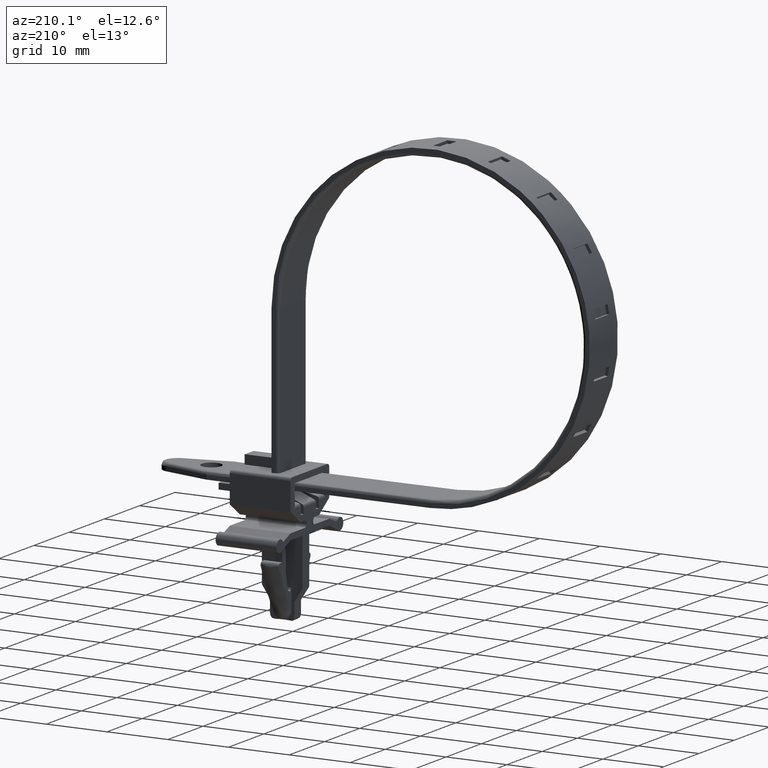
[diagram: clean part render]
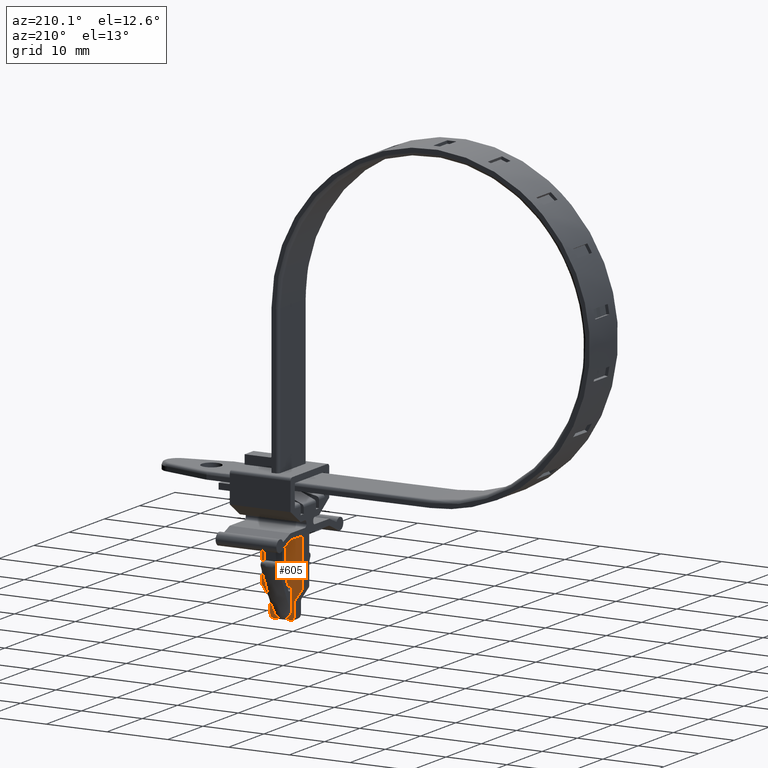
[diagram: same view with one face highlighted and labeled with its STEP entity id]
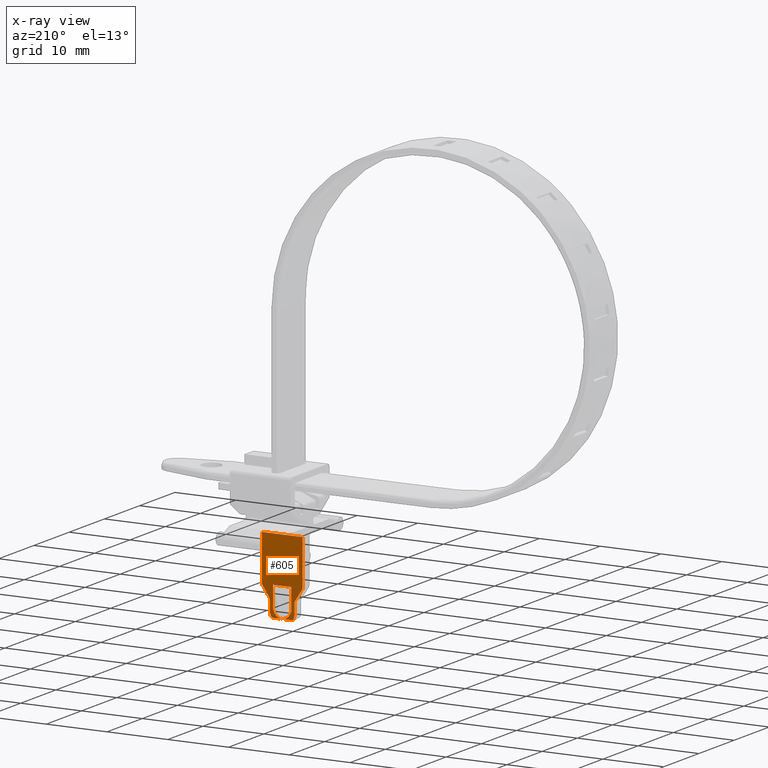
[diagram: x-ray of the same camera — body ghosted, the highlighted face saturated]
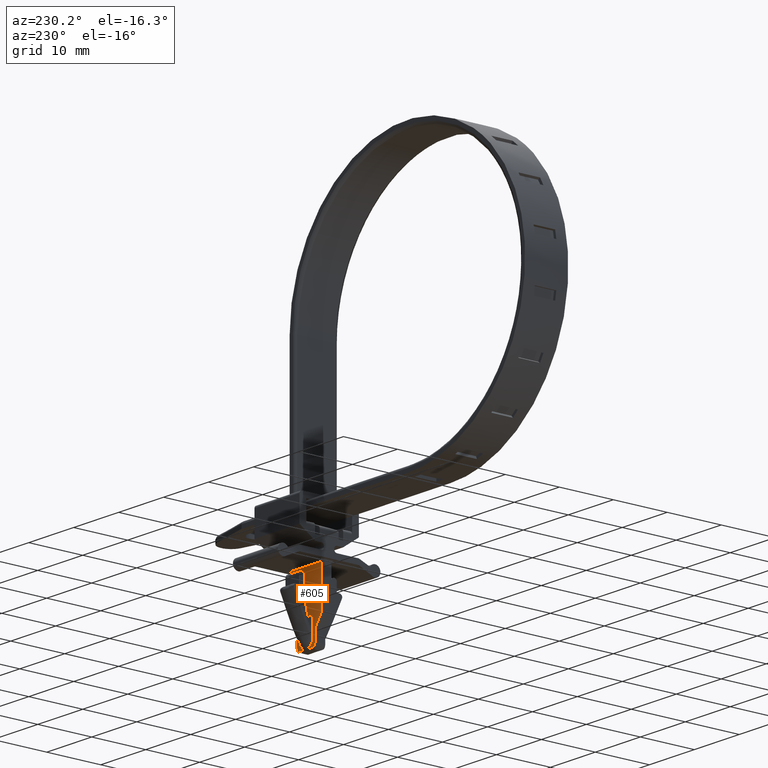
[diagram: same view with one face highlighted and labeled with its STEP entity id]
A machine part, auxiliary view. The second image highlights one B-rep face of the part: STEP entity #605.
The next image is the same camera in x-ray: the body ghosted, the highlighted face saturated — about 0% of this face is hidden behind the body in this view.
A second angle (auxiliary view) of the same face is appended — the face is thin or edge-on in the first view.
In plain terms, the highlighted face is a freeform B-spline surface patch.
Its self-contained STEP definition (entity closure, byte-faithful):
#421=CARTESIAN_POINT('',(7.515334887196288,0.949999999999985,-31.535073138422931));
#422=CARTESIAN_POINT('',(14.884665172706381,0.949999999999985,-31.535073138422931));
#423=CARTESIAN_POINT('',(7.515334887196288,0.949999999999985,-17.984642927539952));
#424=CARTESIAN_POINT('',(14.884665172706381,0.949999999999985,-17.984642927539952));
#425=B_SPLINE_SURFACE_WITH_KNOTS('',1,1,((#421,#423),(#422,#424)),.UNSPECIFIED.,.F.,.F.,.U.,(2,2),(2,2),(0.0,7.369330285510094),(0.0,13.550430210882981),.UNSPECIFIED.);
#426=CARTESIAN_POINT('',(7.850000000000000,0.950000000000000,-26.047041999999799));
#427=VERTEX_POINT('',#426);
#428=CARTESIAN_POINT('',(7.850000000000000,0.949999999999985,-18.600010999999899));
#429=VERTEX_POINT('',#428);
#430=CARTESIAN_POINT('',(7.850000000000000,0.950000000000000,-26.047041999999799));
#431=CARTESIAN_POINT('',(7.850000000000000,0.949999999999985,-18.600010999999899));
#432=QUASI_UNIFORM_CURVE('',1,(#430,#431),.UNSPECIFIED.,.F.,.U.);
#433=EDGE_CURVE('',#427,#429,#432,.T.);
#434=ORIENTED_EDGE('',*,*,#433,.T.);
#435=CARTESIAN_POINT('',(14.550000000000001,0.949999999999985,-18.600010999999899));
#436=VERTEX_POINT('',#435);
#437=CARTESIAN_POINT('',(7.850000000000000,0.949999999999985,-18.600010999999899));
#438=CARTESIAN_POINT('',(14.550000000000001,0.949999999999985,-18.600010999999899));
#439=QUASI_UNIFORM_CURVE('',1,(#437,#438),.UNSPECIFIED.,.F.,.U.);
#440=EDGE_CURVE('',#429,#436,#439,.T.);
#441=ORIENTED_EDGE('',*,*,#440,.T.);
#442=CARTESIAN_POINT('',(14.550000000000001,0.950000000000000,-26.047041999999799));
#443=VERTEX_POINT('',#442);
#444=CARTESIAN_POINT('',(14.550000000000001,0.949999999999985,-18.600010999999899));
#445=CARTESIAN_POINT('',(14.550000000000001,0.950000000000000,-26.047041999999799));
#446=QUASI_UNIFORM_CURVE('',1,(#444,#445),.UNSPECIFIED.,.F.,.U.);
#447=EDGE_CURVE('',#436,#443,#446,.T.);
#448=ORIENTED_EDGE('',*,*,#447,.T.);
#449=CARTESIAN_POINT('',(14.464424336988140,0.950000000000000,-26.326778427573899));
#450=VERTEX_POINT('',#449);
#451=CARTESIAN_POINT('',(14.464424336988140,0.950000000000000,-26.326778427573899));
#452=CARTESIAN_POINT('',(14.520025623258670,0.950000000000000,-26.244839123078979));
#453=CARTESIAN_POINT('',(14.550169258381411,0.950000000000000,-26.146042830347980));
#454=CARTESIAN_POINT('',(14.550000000000001,0.950000000000000,-26.047041999999799));
#455=B_SPLINE_CURVE_WITH_KNOTS('',3,(#451,#452,#453,#454),.UNSPECIFIED.,.F.,.U.,(4,4),(0.000000035302696,0.296891857963275),.UNSPECIFIED.);
#456=EDGE_CURVE('',#450,#443,#455,.T.);
#457=ORIENTED_EDGE('',*,*,#456,.F.);
#458=CARTESIAN_POINT('',(13.285575999999899,0.950000000000000,-28.073220999999801));
#459=VERTEX_POINT('',#458);
#460=CARTESIAN_POINT('',(14.464424336988140,0.950000000000000,-26.326778427573899));
#461=CARTESIAN_POINT('',(13.285575999999899,0.950000000000000,-28.073220999999801));
#462=QUASI_UNIFORM_CURVE('',1,(#460,#461),.UNSPECIFIED.,.F.,.U.);
#463=EDGE_CURVE('',#450,#459,#462,.T.);
#464=ORIENTED_EDGE('',*,*,#463,.T.);
#465=CARTESIAN_POINT('',(13.199999999999999,0.950000000000000,-28.352957999999902));
#466=VERTEX_POINT('',#465);
#467=CARTESIAN_POINT('',(13.285575999999899,0.950000000000000,-28.073220999999801));
#468=CARTESIAN_POINT('',(13.229974513636479,0.949999999999999,-28.155160351088121));
#469=CARTESIAN_POINT('',(13.199830757032800,0.950000000000000,-28.253956854554040));
#470=CARTESIAN_POINT('',(13.199999999999999,0.950000000000000,-28.352957999999902));
#471=B_SPLINE_CURVE_WITH_KNOTS('',3,(#467,#468,#469,#470),.UNSPECIFIED.,.F.,.U.,(4,4),(0.000000035302847,0.296892529076242),.UNSPECIFIED.);
#472=EDGE_CURVE('',#459,#466,#471,.T.);
#473=ORIENTED_EDGE('',*,*,#472,.T.);
#474=CARTESIAN_POINT('',(13.199999999999999,0.950000000000000,-30.199999999999999));
#475=VERTEX_POINT('',#474);
#476=CARTESIAN_POINT('',(13.199999999999999,0.950000000000000,-28.352957999999902));
#477=CARTESIAN_POINT('',(13.199999999999999,0.950000000000000,-30.199999999999999));
#478=QUASI_UNIFORM_CURVE('',1,(#476,#477),.UNSPECIFIED.,.F.,.U.);
#479=EDGE_CURVE('',#466,#475,#478,.T.);
#480=ORIENTED_EDGE('',*,*,#479,.T.);
#481=CARTESIAN_POINT('',(12.894280156074799,0.950000000000000,-30.919704845669699));
#482=VERTEX_POINT('',#481);
#483=CARTESIAN_POINT('',(12.894280156074799,0.950000000000000,-30.919704845669699));
#484=CARTESIAN_POINT('',(12.960555784340990,0.950000000000001,-30.855810977127600));
#485=CARTESIAN_POINT('',(13.059602505806851,0.949999999999999,-30.729497655176360));
#486=CARTESIAN_POINT('',(13.171016842878210,0.950000000000001,-30.484487096479231));
#487=CARTESIAN_POINT('',(13.200072358330701,0.949999999999999,-30.308802521468650));
#488=CARTESIAN_POINT('',(13.199999999999999,0.950000000000000,-30.199999999999999));
#489=B_SPLINE_CURVE_WITH_KNOTS('',3,(#483,#484,#485,#486,#487,#488),.UNSPECIFIED.,.F.,.U.,(4,1,1,4),(0.000000049123241,0.276174295130155,0.477015187433306,0.803398195449526),.UNSPECIFIED.);
#490=EDGE_CURVE('',#482,#475,#489,.T.);
#491=ORIENTED_EDGE('',*,*,#490,.F.);
#492=CARTESIAN_POINT('',(11.199999999999999,0.949999999999985,-30.919704845669699));
#493=VERTEX_POINT('',#492);
#494=CARTESIAN_POINT('',(11.199999999999999,0.949999999999985,-30.919704845669699));
#495=CARTESIAN_POINT('',(12.894280156074799,0.950000000000000,-30.919704845669699));
#496=QUASI_UNIFORM_CURVE('',1,(#494,#495),.UNSPECIFIED.,.F.,.U.);
#497=EDGE_CURVE('',#493,#482,#496,.T.);
#498=ORIENTED_EDGE('',*,*,#497,.F.);
#499=CARTESIAN_POINT('',(12.506509864160220,0.949999999999985,-30.123087999999800));
#500=VERTEX_POINT('',#499);
#501=CARTESIAN_POINT('',(11.199999999999999,0.949999999999985,-30.919704845669699));
#502=CARTESIAN_POINT('',(11.350897304465621,0.949999999999985,-30.919781392472199));
#503=CARTESIAN_POINT('',(11.585555850108040,0.949999999999984,-30.883223240487069));
#504=CARTESIAN_POINT('',(11.904126046897510,0.949999999999987,-30.750933222870898));
#505=CARTESIAN_POINT('',(12.226504839200519,0.949999999999980,-30.535020597488099));
#506=CARTESIAN_POINT('',(12.418378944482839,0.949999999999989,-30.294606355556720));
#507=CARTESIAN_POINT('',(12.506509864160220,0.949999999999985,-30.123087999999800));
#508=B_SPLINE_CURVE_WITH_KNOTS('',3,(#501,#502,#503,#504,#505,#506,#507),.UNSPECIFIED.,.F.,.U.,(4,1,1,1,4),(0.000000069010997,0.452662075720206,0.704151985183393,1.031057096536849,1.609459544902245),.UNSPECIFIED.);
#509=EDGE_CURVE('',#493,#500,#508,.T.);
#510=ORIENTED_EDGE('',*,*,#509,.T.);
#511=CARTESIAN_POINT('',(12.699999999999999,0.949999999999985,-29.738744531181201));
#512=VERTEX_POINT('',#511);
#513=CARTESIAN_POINT('',(12.506509864160220,0.949999999999985,-30.123087999999800));
#514=CARTESIAN_POINT('',(12.699999999999999,0.949999999999985,-29.738744531181201));
#515=QUASI_UNIFORM_CURVE('',1,(#513,#514),.UNSPECIFIED.,.F.,.U.);
#516=EDGE_CURVE('',#500,#512,#515,.T.);
#517=ORIENTED_EDGE('',*,*,#516,.T.);
#518=CARTESIAN_POINT('',(12.699999999999999,0.949999999999989,-26.100010999999899));
#519=VERTEX_POINT('',#518);
#520=CARTESIAN_POINT('',(12.699999999999999,0.949999999999985,-29.738744531181201));
#521=CARTESIAN_POINT('',(12.699999999999999,0.949999999999989,-26.100010999999899));
#522=QUASI_UNIFORM_CURVE('',1,(#520,#521),.UNSPECIFIED.,.F.,.U.);
#523=EDGE_CURVE('',#512,#519,#522,.T.);
#524=ORIENTED_EDGE('',*,*,#523,.T.);
#525=CARTESIAN_POINT('',(9.700000000000001,0.949999999999985,-26.100010999999899));
#526=VERTEX_POINT('',#525);
#527=CARTESIAN_POINT('',(12.699999999999999,0.949999999999989,-26.100010999999899));
#528=CARTESIAN_POINT('',(9.700000000000001,0.949999999999985,-26.100010999999899));
#529=QUASI_UNIFORM_CURVE('',1,(#527,#528),.UNSPECIFIED.,.F.,.U.);
#530=EDGE_CURVE('',#519,#526,#529,.T.);
#531=ORIENTED_EDGE('',*,*,#530,.T.);
#532=CARTESIAN_POINT('',(9.700000000000001,0.949999999999985,-29.738744531180799));
#533=VERTEX_POINT('',#532);
#534=CARTESIAN_POINT('',(9.700000000000001,0.949999999999985,-29.738744531180799));
#535=CARTESIAN_POINT('',(9.700000000000001,0.949999999999985,-26.100010999999899));
#536=QUASI_UNIFORM_CURVE('',1,(#534,#535),.UNSPECIFIED.,.F.,.U.);
#537=EDGE_CURVE('',#533,#526,#536,.T.);
#538=ORIENTED_EDGE('',*,*,#537,.F.);
#539=CARTESIAN_POINT('',(9.893489878254210,0.949999999999985,-30.123088000000649));
#540=VERTEX_POINT('',#539);
#541=CARTESIAN_POINT('',(9.700000000000001,0.949999999999985,-29.738744531180799));
#542=CARTESIAN_POINT('',(9.893489878254210,0.949999999999985,-30.123088000000649));
#543=QUASI_UNIFORM_CURVE('',1,(#541,#542),.UNSPECIFIED.,.F.,.U.);
#544=EDGE_CURVE('',#533,#540,#543,.T.);
#545=ORIENTED_EDGE('',*,*,#544,.T.);
#546=CARTESIAN_POINT('',(9.893489878254210,0.949999999999985,-30.123088000000649));
#547=CARTESIAN_POINT('',(9.966343877466015,0.949999999999988,-30.264736711309990));
#548=CARTESIAN_POINT('',(10.108169219344020,0.949999999999979,-30.455620102266511));
#549=CARTESIAN_POINT('',(10.373377595667970,0.949999999999989,-30.675811067799760));
#550=CARTESIAN_POINT('',(10.705562585421649,0.949999999999980,-30.859475545279931));
#551=CARTESIAN_POINT('',(11.007172320707561,0.949999999999988,-30.919879299116449));
#552=CARTESIAN_POINT('',(11.199999999999999,0.949999999999985,-30.919704845669699));
#553=B_SPLINE_CURVE_WITH_KNOTS('',3,(#546,#547,#548,#549,#550,#551,#552),.UNSPECIFIED.,.F.,.U.,(4,1,1,1,4),(0.000000069010314,0.477812031016714,0.704152072018593,1.031057223695130,1.609459743391037),.UNSPECIFIED.);
#554=EDGE_CURVE('',#540,#493,#553,.T.);
#555=ORIENTED_EDGE('',*,*,#554,.T.);
#556=CARTESIAN_POINT('',(9.505719843925190,0.950000000000000,-30.919704845669699));
#557=VERTEX_POINT('',#556);
#558=CARTESIAN_POINT('',(9.505719843925190,0.950000000000000,-30.919704845669699));
#559=CARTESIAN_POINT('',(11.199999999999999,0.949999999999985,-30.919704845669699));
#560=QUASI_UNIFORM_CURVE('',1,(#558,#559),.UNSPECIFIED.,.F.,.U.);
#561=EDGE_CURVE('',#557,#493,#560,.T.);
#562=ORIENTED_EDGE('',*,*,#561,.F.);
#563=CARTESIAN_POINT('',(9.199999999999999,0.950000000000000,-30.199999999999999));
#564=VERTEX_POINT('',#563);
#565=CARTESIAN_POINT('',(9.199999999999999,0.950000000000000,-30.199999999999999));
#566=CARTESIAN_POINT('',(9.199661343892290,0.950000000000002,-30.359073448243201));
#567=CARTESIAN_POINT('',(9.265340769181723,0.949999999999996,-30.626513567042110));
#568=CARTESIAN_POINT('',(9.427378720510021,0.950000000000002,-30.844211513317859));
#569=CARTESIAN_POINT('',(9.505719843925190,0.950000000000000,-30.919704845669699));
#570=B_SPLINE_CURVE_WITH_KNOTS('',3,(#565,#566,#567,#568,#569),.UNSPECIFIED.,.F.,.U.,(4,1,4),(0.000000049123298,0.477015187433399,0.803398195449521),.UNSPECIFIED.);
#571=EDGE_CURVE('',#564,#557,#570,.T.);
#572=ORIENTED_EDGE('',*,*,#571,.F.);
#573=CARTESIAN_POINT('',(9.199999999999999,0.950000000000000,-28.352957999999902));
#574=VERTEX_POINT('',#573);
#575=CARTESIAN_POINT('',(9.199999999999999,0.950000000000000,-30.199999999999999));
#576=CARTESIAN_POINT('',(9.199999999999999,0.950000000000000,-28.352957999999902));
#577=QUASI_UNIFORM_CURVE('',1,(#575,#576),.UNSPECIFIED.,.F.,.U.);
#578=EDGE_CURVE('',#564,#574,#577,.T.);
#579=ORIENTED_EDGE('',*,*,#578,.T.);
#580=CARTESIAN_POINT('',(9.114424336988060,0.950000000000000,-28.073221572425751));
#581=VERTEX_POINT('',#580);
#582=CARTESIAN_POINT('',(9.199999999999999,0.950000000000000,-28.352957999999902));
#583=CARTESIAN_POINT('',(9.200242527919910,0.950000000000000,-28.253935298060100));
#584=CARTESIAN_POINT('',(9.169952695169918,0.950000000000000,-28.155183454234450));
#585=CARTESIAN_POINT('',(9.114424336988060,0.950000000000000,-28.073221572425751));
#586=B_SPLINE_CURVE_WITH_KNOTS('',3,(#582,#583,#584,#585),.UNSPECIFIED.,.F.,.U.,(4,4),(0.000000035302956,0.296891857963325),.UNSPECIFIED.);
#587=EDGE_CURVE('',#574,#581,#586,.T.);
#588=ORIENTED_EDGE('',*,*,#587,.T.);
#589=CARTESIAN_POINT('',(7.935575663011859,0.950000000000000,-26.326778427573899));
#590=VERTEX_POINT('',#589);
#591=CARTESIAN_POINT('',(9.114424336988060,0.950000000000000,-28.073221572425751));
#592=CARTESIAN_POINT('',(7.935575663011859,0.950000000000000,-26.326778427573899));
#593=QUASI_UNIFORM_CURVE('',1,(#591,#592),.UNSPECIFIED.,.F.,.U.);
#594=EDGE_CURVE('',#581,#590,#593,.T.);
#595=ORIENTED_EDGE('',*,*,#594,.T.);
#596=CARTESIAN_POINT('',(7.850000000000000,0.950000000000000,-26.047041999999799));
#597=CARTESIAN_POINT('',(7.849828157340631,0.950000000000001,-26.146043706037631));
#598=CARTESIAN_POINT('',(7.879974604997702,0.950000000000001,-26.244838978634711));
#599=CARTESIAN_POINT('',(7.935575663011859,0.950000000000000,-26.326778427573899));
#600=B_SPLINE_CURVE_WITH_KNOTS('',3,(#596,#597,#598,#599),.UNSPECIFIED.,.F.,.U.,(4,4),(0.000000035302821,0.296891857963274),.UNSPECIFIED.);
#601=EDGE_CURVE('',#427,#590,#600,.T.);
#602=ORIENTED_EDGE('',*,*,#601,.F.);
#603=EDGE_LOOP('',(#434,#441,#448,#457,#464,#473,#480,#491,#498,#510,#517,#524,#531,#538,#545,#555,#562,#572,#579,#588,#595,#602));
#604=FACE_OUTER_BOUND('',#603,.T.);
#605=ADVANCED_FACE('',(#604),#425,.F.);